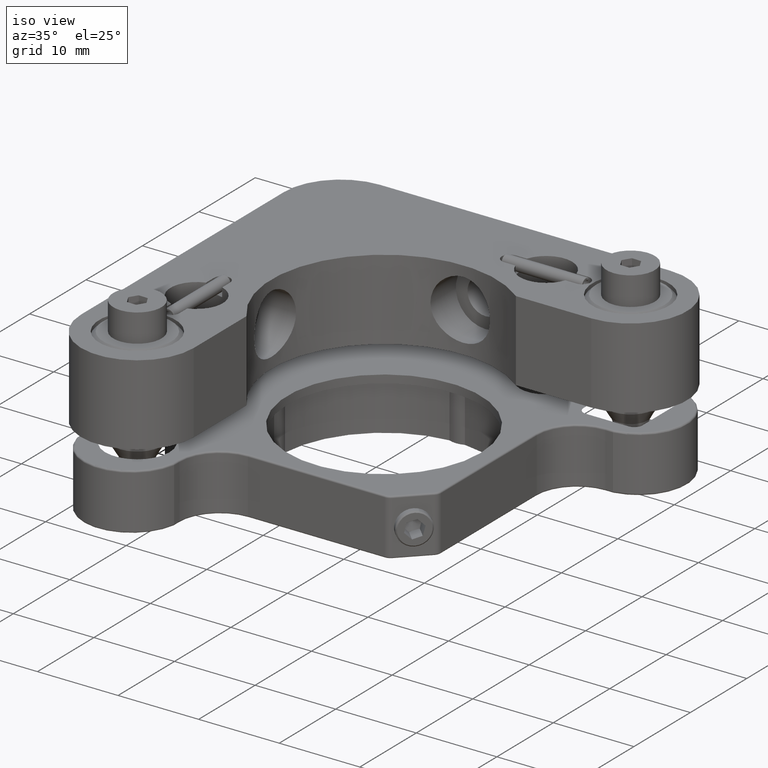
[diagram: clean part render]
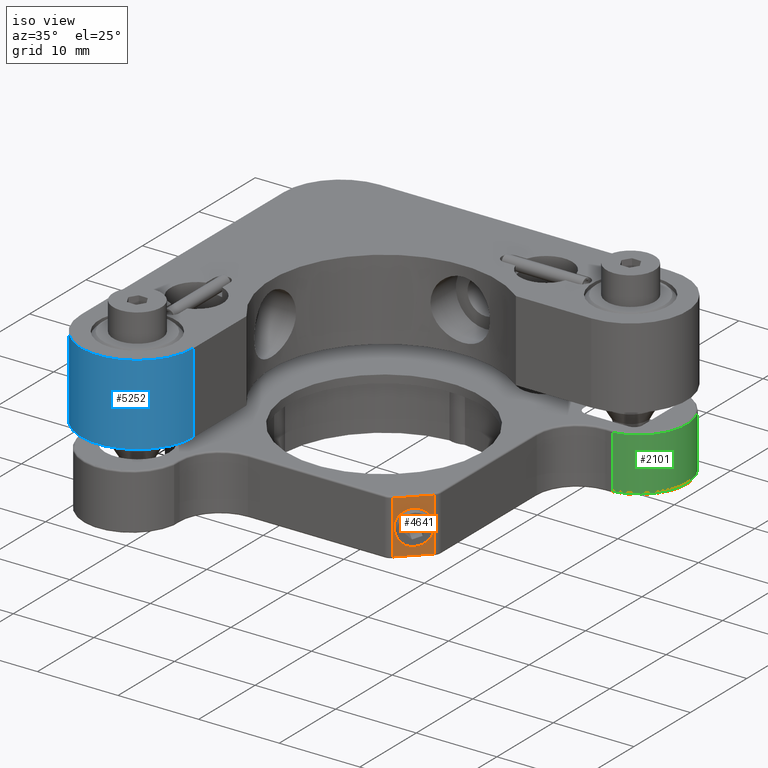
[diagram: same view with three faces highlighted in distinct colors, each labeled with its STEP entity id]
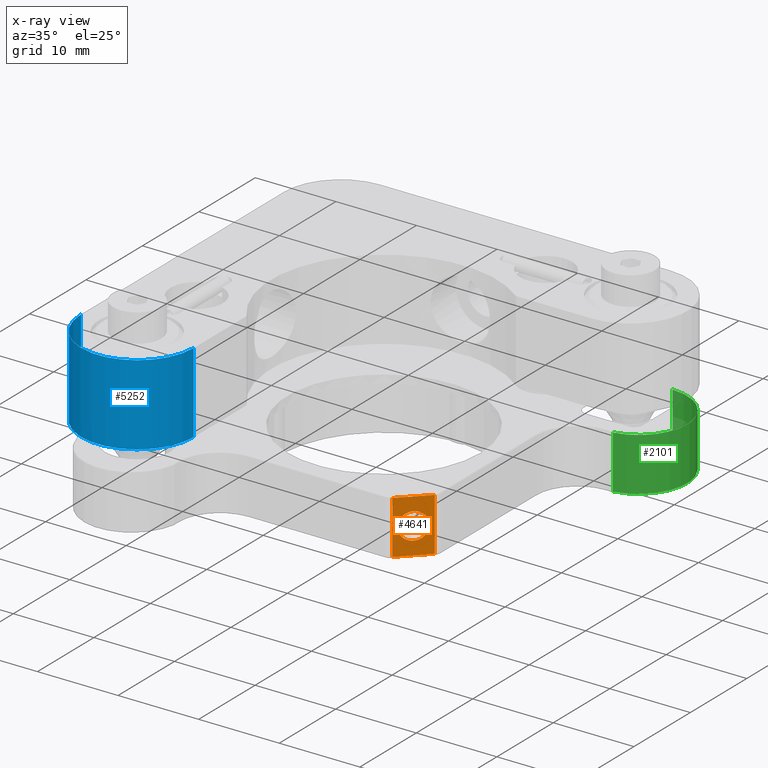
[diagram: x-ray of the same camera — body ghosted, the three highlighted faces saturated]
A machine part, iso view with three faces highlighted in distinct colors.
The next image is the same camera in x-ray (body ghosted, the three faces saturated) — at least one of them is partly hidden behind the body in this view.
Their STEP definitions:

[orange] entity #4641 — the highlighted planar face has unit normal (-0.7071, 0.7071, 0).
#10 = DIRECTION ( 'NONE',  ( -0.7071067811865471286, -0.7071067811865479058, 0.000000000000000000 ) ) ;
#46 = EDGE_LOOP ( 'NONE', ( #1960 ) ) ;
#418 = FACE_BOUND ( 'NONE', #46, .T. ) ;
#515 = EDGE_CURVE ( 'NONE', #1751, #3432, #3949, .T. ) ;
#553 = VECTOR ( 'NONE', #2772, 1000.000000000000000 ) ;
#759 = VECTOR ( 'NONE', #1844, 1000.000000000000000 ) ;
#843 = ORIENTED_EDGE ( 'NONE', *, *, #3318, .T. ) ;
#924 = EDGE_CURVE ( 'NONE', #3568, #2639, #3486, .T. ) ;
#1005 = ORIENTED_EDGE ( 'NONE', *, *, #924, .T. ) ;
#1165 = AXIS2_PLACEMENT_3D ( 'NONE', #3570, #1841, #3489 ) ;
#1281 = CARTESIAN_POINT ( 'NONE',  ( 38.06141321282979106, 23.66154696718356121, 25.48193547686141969 ) ) ;
#1351 = VECTOR ( 'NONE', #4029, 1000.000000000000000 ) ;
#1448 = EDGE_LOOP ( 'NONE', ( #2381, #3451, #843, #1005 ) ) ;
#1681 = VERTEX_POINT ( 'NONE', #1281 ) ;
#1751 = VERTEX_POINT ( 'NONE', #4792 ) ;
#1761 = CIRCLE ( 'NONE', #1165, 1.649999999999986366 ) ;
#1841 = DIRECTION ( 'NONE',  ( 0.7071067811865475727, -0.7071067811865474617, -0.000000000000000000 ) ) ;
#1844 = DIRECTION ( 'NONE',  ( -0.000000000000000000, -0.000000000000000000, -1.000000000000000000 ) ) ;
#1960 = ORIENTED_EDGE ( 'NONE', *, *, #2950, .F. ) ;
#1965 = CARTESIAN_POINT ( 'NONE',  ( 38.43955716864992667, 24.03969092300369681, 28.98193547686141969 ) ) ;
#2018 = LINE ( 'NONE', #1965, #553 ) ;
#2076 = PLANE ( 'NONE',  #3359 ) ;
#2301 = DIRECTION ( 'NONE',  ( -0.7071067811865471286, -0.7071067811865479058, -0.000000000000000000 ) ) ;
#2381 = ORIENTED_EDGE ( 'NONE', *, *, #3920, .T. ) ;
#2426 = CARTESIAN_POINT ( 'NONE',  ( 38.43955716864992667, 24.03969092300369681, 28.78193547686142040 ) ) ;
#2458 = CARTESIAN_POINT ( 'NONE',  ( 41.13732771099127916, 26.73746146534505286, 28.98193547686141969 ) ) ;
#2639 = VERTEX_POINT ( 'NONE', #3762 ) ;
#2772 = DIRECTION ( 'NONE',  ( 0.000000000000000000, -0.000000000000000000, 1.000000000000000000 ) ) ;
#2950 = EDGE_CURVE ( 'NONE', #1681, #1681, #1761, .T. ) ;
#3318 = EDGE_CURVE ( 'NONE', #3432, #3568, #2018, .T. ) ;
#3359 = AXIS2_PLACEMENT_3D ( 'NONE', #2458, #3719, #10 ) ;
#3432 = VERTEX_POINT ( 'NONE', #4686 ) ;
#3451 = ORIENTED_EDGE ( 'NONE', *, *, #515, .T. ) ;
#3486 = LINE ( 'NONE', #4780, #5109 ) ;
#3489 = DIRECTION ( 'NONE',  ( 0.7071067811865475727, 0.7071067811865475727, 0.000000000000000000 ) ) ;
#3568 = VERTEX_POINT ( 'NONE', #2426 ) ;
#3570 = CARTESIAN_POINT ( 'NONE',  ( 36.89468702387199528, 22.49482077822576898, 25.48193547686141969 ) ) ;
#3719 = DIRECTION ( 'NONE',  ( -0.7071067811865479058, 0.7071067811865471286, 0.000000000000000000 ) ) ;
#3762 = CARTESIAN_POINT ( 'NONE',  ( 35.34981687909407100, 20.94995063344783759, 28.78193547686142040 ) ) ;
#3920 = EDGE_CURVE ( 'NONE', #2639, #1751, #5146, .T. ) ;
#3949 = LINE ( 'NONE', #4002, #1351 ) ;
#4002 = CARTESIAN_POINT ( 'NONE',  ( 38.43955716864992667, 24.03969092300369681, 22.18193547686141898 ) ) ;
#4029 = DIRECTION ( 'NONE',  ( 0.7071067811865471286, 0.7071067811865479058, 0.000000000000000000 ) ) ;
#4641 = ADVANCED_FACE ( 'NONE', ( #418, #5318 ), #2076, .F. ) ;
#4686 = CARTESIAN_POINT ( 'NONE',  ( 38.43955716864992667, 24.03969092300369681, 22.18193547686141898 ) ) ;
#4780 = CARTESIAN_POINT ( 'NONE',  ( 41.13732771099127916, 26.73746146534505286, 28.78193547686142040 ) ) ;
#4792 = CARTESIAN_POINT ( 'NONE',  ( 35.34981687909407100, 20.94995063344783759, 22.18193547686141898 ) ) ;
#5109 = VECTOR ( 'NONE', #2301, 1000.000000000000000 ) ;
#5146 = LINE ( 'NONE', #5225, #759 ) ;
#5225 = CARTESIAN_POINT ( 'NONE',  ( 35.34981687909407100, 20.94995063344783759, 28.98193547686141969 ) ) ;
#5318 = FACE_OUTER_BOUND ( 'NONE', #1448, .T. ) ;

[blue] entity #5252 — the highlighted cylindrical surface (partial cylindrical patch) has radius 7 mm, axis along (-0, 0, 1).
#4 = CARTESIAN_POINT ( 'NONE',  ( 13.73245038746337343, 16.65705741463438372, 31.48193547686144811 ) ) ;
#70 = AXIS2_PLACEMENT_3D ( 'NONE', #360, #2010, #3740 ) ;
#134 = ORIENTED_EDGE ( 'NONE', *, *, #4924, .T. ) ;
#271 = CARTESIAN_POINT ( 'NONE',  ( 13.73245038746337343, 16.65705741463438372, 41.48193547686144456 ) ) ;
#360 = CARTESIAN_POINT ( 'NONE',  ( 6.732450387463373431, 16.65705741463438372, 41.48193547686144456 ) ) ;
#580 = VERTEX_POINT ( 'NONE', #4785 ) ;
#704 = CARTESIAN_POINT ( 'NONE',  ( 6.732450387463373431, 16.65705741463438372, 31.48193547686144811 ) ) ;
#802 = ORIENTED_EDGE ( 'NONE', *, *, #2686, .F. ) ;
#1074 = VECTOR ( 'NONE', #3840, 1000.000000000000000 ) ;
#1122 = CYLINDRICAL_SURFACE ( 'NONE', #5091, 6.999999999999999112 ) ;
#1158 = ORIENTED_EDGE ( 'NONE', *, *, #4511, .F. ) ;
#1264 = DIRECTION ( 'NONE',  ( -0.000000000000000000, 0.000000000000000000, 1.000000000000000000 ) ) ;
#1771 = CARTESIAN_POINT ( 'NONE',  ( 13.73245038746337343, 16.65705741463438372, 31.48193547686144811 ) ) ;
#1833 = CARTESIAN_POINT ( 'NONE',  ( -0.2675496125366279010, 16.65705741463438372, 41.48193547686144456 ) ) ;
#1924 = FACE_OUTER_BOUND ( 'NONE', #3202, .T. ) ;
#2010 = DIRECTION ( 'NONE',  ( 0.000000000000000000, 0.000000000000000000, -1.000000000000000000 ) ) ;
#2363 = DIRECTION ( 'NONE',  ( 0.000000000000000000, 1.000000000000000000, 0.000000000000000000 ) ) ;
#2473 = LINE ( 'NONE', #5305, #1074 ) ;
#2481 = DIRECTION ( 'NONE',  ( 0.000000000000000000, 0.000000000000000000, -1.000000000000000000 ) ) ;
#2686 = EDGE_CURVE ( 'NONE', #580, #3185, #2473, .T. ) ;
#3185 = VERTEX_POINT ( 'NONE', #1833 ) ;
#3202 = EDGE_LOOP ( 'NONE', ( #134, #802, #1158, #3452 ) ) ;
#3308 = LINE ( 'NONE', #4, #3433 ) ;
#3433 = VECTOR ( 'NONE', #1264, 1000.000000000000000 ) ;
#3452 = ORIENTED_EDGE ( 'NONE', *, *, #3602, .T. ) ;
#3602 = EDGE_CURVE ( 'NONE', #4666, #3919, #3308, .T. ) ;
#3617 = AXIS2_PLACEMENT_3D ( 'NONE', #5345, #2481, #4583 ) ;
#3740 = DIRECTION ( 'NONE',  ( 0.000000000000000000, -1.000000000000000000, 0.000000000000000000 ) ) ;
#3840 = DIRECTION ( 'NONE',  ( -0.000000000000000000, 0.000000000000000000, 1.000000000000000000 ) ) ;
#3919 = VERTEX_POINT ( 'NONE', #271 ) ;
#4511 = EDGE_CURVE ( 'NONE', #4666, #580, #5348, .T. ) ;
#4583 = DIRECTION ( 'NONE',  ( 0.000000000000000000, -1.000000000000000000, 0.000000000000000000 ) ) ;
#4666 = VERTEX_POINT ( 'NONE', #1771 ) ;
#4785 = CARTESIAN_POINT ( 'NONE',  ( -0.2675496125366279010, 16.65705741463438372, 31.48193547686144811 ) ) ;
#4789 = DIRECTION ( 'NONE',  ( -0.000000000000000000, 0.000000000000000000, 1.000000000000000000 ) ) ;
#4823 = CIRCLE ( 'NONE', #70, 7.000000000000000888 ) ;
#4924 = EDGE_CURVE ( 'NONE', #3919, #3185, #4823, .T. ) ;
#5091 = AXIS2_PLACEMENT_3D ( 'NONE', #704, #4789, #2363 ) ;
#5252 = ADVANCED_FACE ( 'NONE', ( #1924 ), #1122, .T. ) ;
#5305 = CARTESIAN_POINT ( 'NONE',  ( -0.2675496125366279010, 16.65705741463438372, 31.48193547686144811 ) ) ;
#5345 = CARTESIAN_POINT ( 'NONE',  ( 6.732450387463373431, 16.65705741463438372, 31.48193547686144811 ) ) ;
#5348 = CIRCLE ( 'NONE', #3617, 7.000000000000000888 ) ;

[green] entity #2101 — the highlighted cylindrical surface (partial cylindrical patch) has radius 6 mm, axis along (-0, -0, -1).
#160 = CIRCLE ( 'NONE', #2832, 6.000000000000005329 ) ;
#203 = ORIENTED_EDGE ( 'NONE', *, *, #4638, .T. ) ;
#230 = FACE_OUTER_BOUND ( 'NONE', #5032, .T. ) ;
#563 = VERTEX_POINT ( 'NONE', #2676 ) ;
#611 = DIRECTION ( 'NONE',  ( -0.000000000000000000, -0.000000000000000000, -1.000000000000000000 ) ) ;
#626 = EDGE_CURVE ( 'NONE', #563, #3487, #5222, .T. ) ;
#632 = CARTESIAN_POINT ( 'NONE',  ( 43.73245038746337343, 52.65705741463437306, 28.98193547686141969 ) ) ;
#826 = DIRECTION ( 'NONE',  ( 0.000000000000000000, 0.000000000000000000, 1.000000000000000000 ) ) ;
#1143 = VECTOR ( 'NONE', #4384, 1000.000000000000000 ) ;
#1183 = DIRECTION ( 'NONE',  ( -1.000000000000000000, 0.000000000000000000, 0.000000000000000000 ) ) ;
#1285 = ORIENTED_EDGE ( 'NONE', *, *, #3150, .T. ) ;
#1707 = VERTEX_POINT ( 'NONE', #3336 ) ;
#1808 = CYLINDRICAL_SURFACE ( 'NONE', #4958, 6.000000000000005329 ) ;
#1887 = DIRECTION ( 'NONE',  ( -0.000000000000000000, -0.000000000000000000, -1.000000000000000000 ) ) ;
#1907 = CARTESIAN_POINT ( 'NONE',  ( 43.73245038746343027, 58.65705741463438017, 22.18193547686141898 ) ) ;
#2101 = ADVANCED_FACE ( 'NONE', ( #230 ), #1808, .T. ) ;
#2456 = ORIENTED_EDGE ( 'NONE', *, *, #626, .F. ) ;
#2668 = CARTESIAN_POINT ( 'NONE',  ( 44.68242398836241591, 46.73273887512328173, 28.98193547686141969 ) ) ;
#2676 = CARTESIAN_POINT ( 'NONE',  ( 43.73245038746343027, 58.65705741463438017, 28.78193547686142040 ) ) ;
#2701 = CARTESIAN_POINT ( 'NONE',  ( 43.73245038746343027, 58.65705741463438017, 28.98193547686141969 ) ) ;
#2832 = AXIS2_PLACEMENT_3D ( 'NONE', #5285, #2898, #1183 ) ;
#2898 = DIRECTION ( 'NONE',  ( -0.000000000000000000, -0.000000000000000000, -1.000000000000000000 ) ) ;
#2932 = CARTESIAN_POINT ( 'NONE',  ( 43.73245038746337343, 52.65705741463437306, 22.18193547686141898 ) ) ;
#3150 = EDGE_CURVE ( 'NONE', #4629, #1707, #5160, .T. ) ;
#3336 = CARTESIAN_POINT ( 'NONE',  ( 44.68242398836241591, 46.73273887512328173, 22.18193547686141898 ) ) ;
#3440 = CIRCLE ( 'NONE', #3530, 6.000000000000005329 ) ;
#3487 = VERTEX_POINT ( 'NONE', #1907 ) ;
#3530 = AXIS2_PLACEMENT_3D ( 'NONE', #2932, #826, #4179 ) ;
#4179 = DIRECTION ( 'NONE',  ( -1.000000000000000000, 0.000000000000000000, 0.000000000000000000 ) ) ;
#4384 = DIRECTION ( 'NONE',  ( -0.000000000000000000, -0.000000000000000000, -1.000000000000000000 ) ) ;
#4531 = CARTESIAN_POINT ( 'NONE',  ( 44.68242398836241591, 46.73273887512328173, 28.78193547686142040 ) ) ;
#4629 = VERTEX_POINT ( 'NONE', #4531 ) ;
#4638 = EDGE_CURVE ( 'NONE', #1707, #3487, #3440, .T. ) ;
#4927 = EDGE_CURVE ( 'NONE', #563, #4629, #160, .T. ) ;
#4958 = AXIS2_PLACEMENT_3D ( 'NONE', #632, #1887, #5186 ) ;
#4967 = VECTOR ( 'NONE', #611, 1000.000000000000000 ) ;
#5032 = EDGE_LOOP ( 'NONE', ( #1285, #203, #2456, #5263 ) ) ;
#5160 = LINE ( 'NONE', #2668, #4967 ) ;
#5186 = DIRECTION ( 'NONE',  ( -1.000000000000000000, 0.000000000000000000, 0.000000000000000000 ) ) ;
#5222 = LINE ( 'NONE', #2701, #1143 ) ;
#5263 = ORIENTED_EDGE ( 'NONE', *, *, #4927, .T. ) ;
#5285 = CARTESIAN_POINT ( 'NONE',  ( 43.73245038746337343, 52.65705741463437306, 28.78193547686142040 ) ) ;